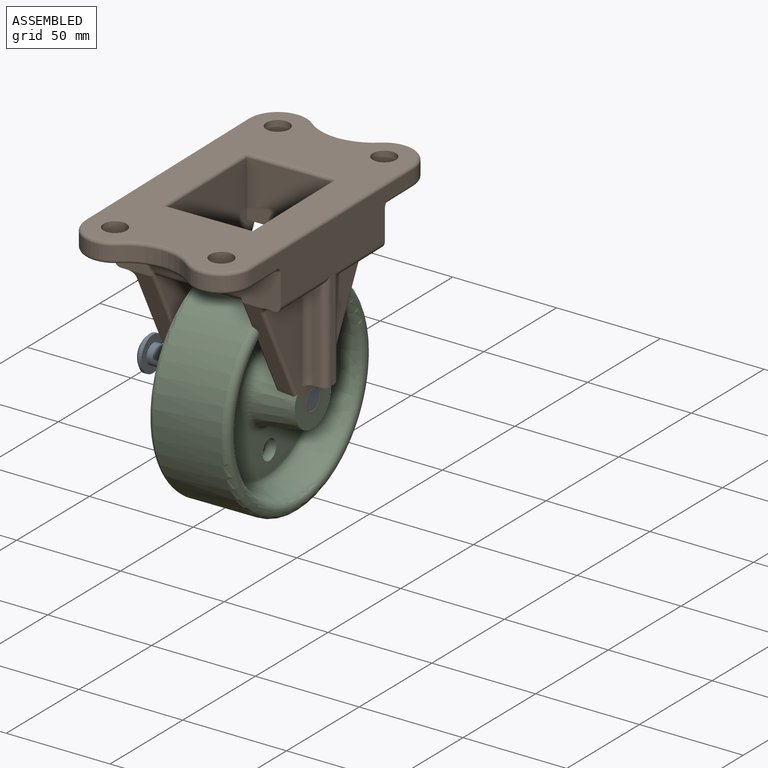
[diagram: assembled view]
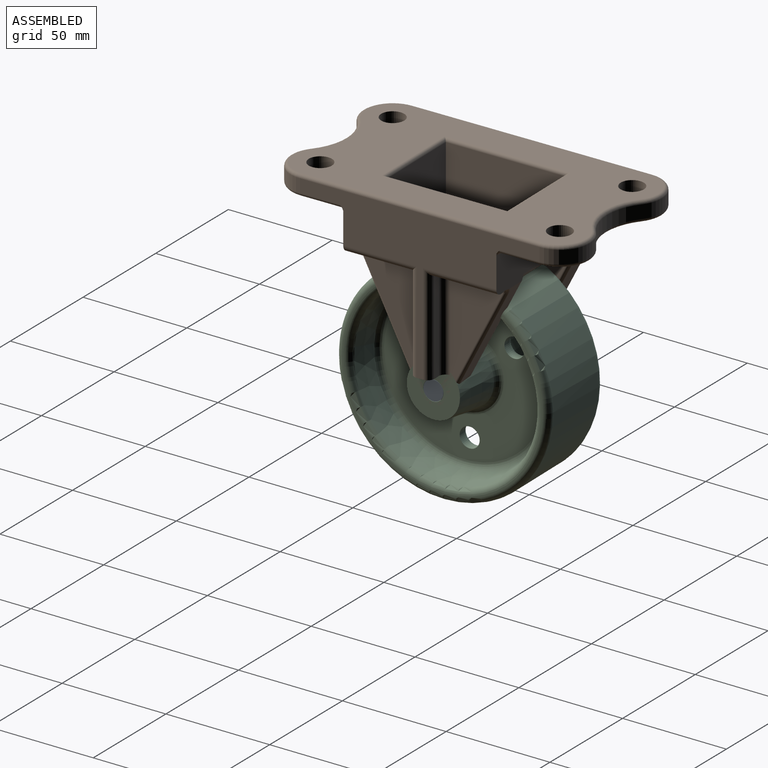
[diagram: assembled view, second angle]
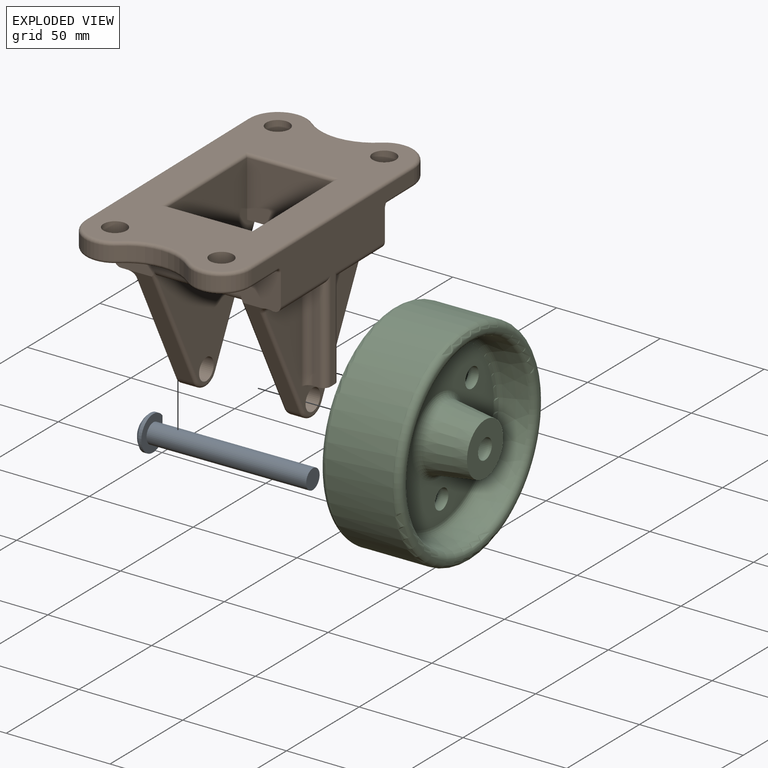
[diagram: exploded view]
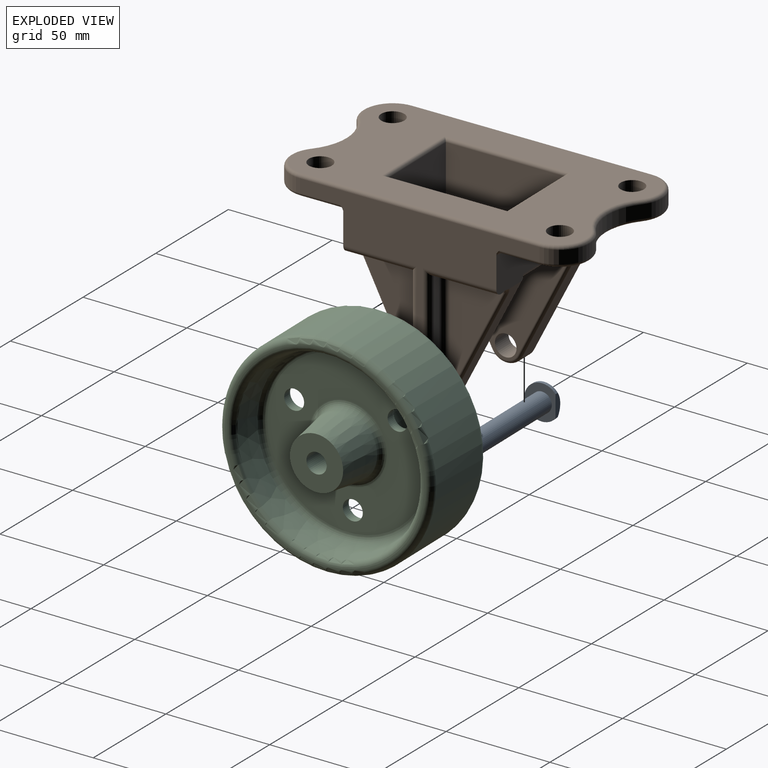
[diagram: exploded view, second angle]
ASSEMBLY  parts=3 mates=2
PART A: 7 faces, bbox 74.1x51.1x16.8 mm
  f0: plane 16.75x12.79mm, normal (0.86,0.51,0), area 136.9mm2, adj f1,f2,f6
  f1: cylinder r=8.38mm len=16.75mm, axis (-0.86,-0.51,0), area 65.5mm2, adj f0,f3,f6
  f2: cylinder r=4.72mm len=70.29mm, axis (-0.86,-0.51,0), area 2261.9mm2, adj f0,f5
  f3: sphere r=11.09mm, area 202.6mm2, adj f1,f4,f6
  f4: plane 7.47x6.42mm, normal (-0.86,-0.51,0), area 43.8mm2, adj f3
  f5: plane 9.45x8.12mm, normal (0.86,0.51,0), area 70.1mm2, adj f2
  f6: plane 10.54x2.83mm, normal (-0.51,0.86,0), area 29mm2, adj f0,f1,f3
PART B: 100 faces, bbox 146.6x86.9x92.5 mm
  f0: plane 139.7x76.2mm, normal (0,0,1), area 6908.5mm2, adj f11,f12,f13,f14,f51,f52,f53,f54
  f1: plane 76.2x31.75mm, normal (0,0,-1), area 1891.8mm2, adj f13,f14,f59,f60,f61,f62,f63,f73
  f2: plane 87.31x69.91mm, normal (0,1,0), area 3783.4mm2, adj f26,f47,f48,f49,f50,f91,f92,f93
  f3: plane 76.2x31.75mm, normal (0,0,-1), area 1891.8mm2, adj f11,f12,f64,f65,f66,f67,f68,f70
  f4: plane 114.89x72.82mm, normal (0,-1,0), area 2157.7mm2, adj f5,f15,f18,f19,f22,f28,f29,f30
  f5: cylinder r=14.29mm len=23.43mm, axis (0,0,-1), area 205.5mm2, adj f4,f6,f52,f60
  f6: cylinder r=25.4mm len=32.51mm, axis (0,0,-1), area 224mm2, adj f5,f7,f51,f61
  f7: cylinder r=14.29mm len=23.43mm, axis (0,0,-1), area 205.5mm2, adj f6,f8,f53,f62
  f8: plane 114.89x72.82mm, normal (0,1,0), area 2157.7mm2, adj f7,f9,f18,f19,f36,f43,f44,f45
  f9: cylinder r=14.29mm len=23.43mm, axis (0,0,-1), area 205.5mm2, adj f8,f10,f57,f67
  f10: cylinder r=25.4mm len=32.51mm, axis (0,0,-1), area 224mm2, adj f9,f15,f58,f68
  f11: cylinder r=5.56mm len=11.11mm, axis (0,0,-1), area 332.5mm2, adj f0,f3
  f12: cylinder r=5.56mm len=11.11mm, axis (0,0,-1), area 332.5mm2, adj f0,f3
  f13: cylinder r=5.56mm len=11.11mm, axis (0,0,-1), area 332.5mm2, adj f0,f1
  f14: cylinder r=5.56mm len=11.11mm, axis (0,0,-1), area 332.5mm2, adj f0,f1
  f15: cylinder r=14.29mm len=23.43mm, axis (0,0,-1), area 205.5mm2, adj f4,f10,f56,f66
  f16: plane 45.24x3.18mm, normal (1,0,0), area 143.6mm2, adj f17,f22,f30,f81
  f17: plane 31.75x3.18mm, normal (0,0,-1), area 100.8mm2, adj f16,f18,f31,f82
  f18: plane 80.76x19.27mm, normal (1,0,0), area 1247.8mm2, adj f4,f8,f17,f24,f31,f34,f39,f43
  f19: plane 80.76x19.27mm, normal (-1,0,0), area 1247.8mm2, adj f4,f8,f20,f23,f28,f33,f37,f46
  f20: plane 31.75x3.18mm, normal (0,0,-1), area 100.8mm2, adj f19,f21,f28,f79
  f21: plane 45.24x3.18mm, normal (-1,0,0), area 143.6mm2, adj f20,f22,f29,f80
  f22: plane 15.88x9.53mm, normal (0,0,-1), area 90.7mm2, adj f4,f16,f21,f27,f29,f30,f80,f81
  f23: plane 58.27x30.13mm, normal (-0.89,0,-0.46), area 515.8mm2, adj f19,f25,f27,f79,f94
  f24: plane 58.27x30.13mm, normal (0.89,0,-0.46), area 515.8mm2, adj f18,f25,f27,f82,f93
  f25: cylinder r=7.94mm len=14.13mm, axis (0,-1,0), area 138.4mm2, adj f23,f24,f27,f95
  f26: cylinder r=5.16mm len=10.32mm, axis (0,-1,0), area 308.8mm2, adj f2,f27
  f27: plane 69.78x58.74mm, normal (0,-1,0), area 1575.2mm2, adj f22,f23,f24,f25,f26,f79,f80,f81
  f28: cylinder r=3.17mm len=34.93mm, axis (-1,0,0), area 166.3mm2, adj f4,f19,f20,f29
  f29: cylinder r=3.17mm len=48.42mm, axis (0,0,1), area 233.6mm2, adj f4,f21,f22,f28
  f30: cylinder r=3.17mm len=48.42mm, axis (0,0,-1), area 233.6mm2, adj f4,f16,f22,f31
  f31: cylinder r=3.17mm len=34.93mm, axis (-1,0,0), area 166.3mm2, adj f4,f17,f18,f30
  f32: plane 45.24x3.18mm, normal (-1,0,0), area 143.6mm2, adj f33,f36,f45,f77
  f33: plane 32.05x3.48mm, normal (0,0,-1), area 99.9mm2, adj f19,f32,f46,f78,f87
  f34: plane 32.05x3.48mm, normal (0,0,-1), area 99.9mm2, adj f18,f35,f43,f75,f83
  f35: plane 45.24x3.18mm, normal (1,0,0), area 143.6mm2, adj f34,f36,f44,f76
  f36: plane 15.88x9.53mm, normal (0,0,-1), area 90.7mm2, adj f8,f32,f35,f42,f44,f45,f76,f77
  f37: plane 57.59x29.45mm, normal (-0.89,0,-0.46), area 413.4mm2, adj f19,f38,f86,f87,f88
  f38: cylinder r=7.94mm len=14.13mm, axis (0,1,0), area 110.7mm2, adj f37,f39,f85,f90
  f39: plane 57.59x29.45mm, normal (0.89,0,-0.46), area 413.4mm2, adj f18,f38,f83,f84,f89
  f40: cylinder r=5.16mm len=10.31mm, axis (0,1,0), area 308.6mm2, adj f41,f42
  f41: plane 87.31x69.91mm, normal (0,-1,0), area 3783.5mm2, adj f40,f47,f48,f49,f50,f88,f89,f90
  f42: plane 66.21x57.15mm, normal (0,1,0), area 1357.7mm2, adj f36,f40,f75,f76,f77,f78,f84,f85
  f43: cylinder r=3.17mm len=34.93mm, axis (-1,0,0), area 166.3mm2, adj f8,f18,f34,f44
  f44: cylinder r=3.17mm len=48.41mm, axis (0,0,-1), area 233.5mm2, adj f8,f35,f36,f43
  f45: cylinder r=3.17mm len=48.41mm, axis (0,0,1), area 233.5mm2, adj f8,f32,f36,f46
  f46: cylinder r=3.17mm len=34.93mm, axis (-1,0,0), area 166.3mm2, adj f8,f19,f33,f45
  f47: plane 41.28x26.99mm, normal (1,0,0), area 1113.9mm2, adj f2,f41,f48,f96
  f48: plane 41.28x4.76mm, normal (0,0,-1), area 196.6mm2, adj f2,f41,f47,f92
  f49: plane 41.28x26.99mm, normal (-1,0,0), area 1113.9mm2, adj f2,f41,f50,f99
  f50: plane 41.28x4.76mm, normal (0,0,-1), area 196.6mm2, adj f2,f41,f49,f91
  f51: torus R=26.99mm, axis (0,0,1), area 90mm2, adj f0,f6,f52,f53
  f52: torus R=12.7mm, axis (0,0,1), area 77.4mm2, adj f0,f5,f51,f54
  f53: torus R=12.7mm, axis (0,0,1), area 77.4mm2, adj f0,f7,f51,f55
  f54: cylinder r=1.59mm len=114.3mm, axis (-1,0,0), area 285mm2, adj f0,f4,f52,f56
  f55: cylinder r=1.59mm len=114.3mm, axis (1,0,0), area 285mm2, adj f0,f8,f53,f57
  f56: torus R=12.7mm, axis (0,0,1), area 77.4mm2, adj f0,f15,f54,f58
  f57: torus R=12.7mm, axis (0,0,1), area 77.4mm2, adj f0,f9,f55,f58
  f58: torus R=26.99mm, axis (0,0,1), area 90mm2, adj f0,f10,f56,f57
  f59: cylinder r=1.59mm len=19.05mm, axis (1,0,0), area 47.5mm2, adj f1,f4,f60,f72
  f60: torus R=12.7mm, axis (0,0,1), area 77.4mm2, adj f1,f5,f59,f61
  f61: torus R=26.99mm, axis (0,0,1), area 90mm2, adj f1,f6,f60,f62
  f62: torus R=12.7mm, axis (0,0,1), area 77.4mm2, adj f1,f7,f61,f63
  f63: cylinder r=1.59mm len=19.05mm, axis (-1,0,0), area 47.5mm2, adj f1,f8,f62,f74
  f64: cylinder r=1.59mm len=19.05mm, axis (1,0,0), area 47.5mm2, adj f3,f4,f66,f69
  f65: cylinder r=1.59mm len=19.05mm, axis (-1,0,0), area 47.5mm2, adj f3,f8,f67,f71
  f66: torus R=12.7mm, axis (0,0,1), area 77.4mm2, adj f3,f15,f64,f68
  f67: torus R=12.7mm, axis (0,0,1), area 77.4mm2, adj f3,f9,f65,f68
  f68: torus R=26.99mm, axis (0,0,1), area 90mm2, adj f3,f10,f66,f67
  f69: torus R=3.17mm, axis (-1,0,0), area 5.3mm2, adj f4,f19,f64,f70
  f70: cylinder r=1.59mm len=76.2mm, axis (0,-1,0), area 190mm2, adj f3,f19,f69,f71
  f71: torus R=3.17mm, axis (-1,0,0), area 5.3mm2, adj f8,f19,f65,f70
  f72: torus R=3.17mm, axis (-1,0,0), area 5.3mm2, adj f4,f18,f59,f73
  f73: cylinder r=1.59mm len=76.2mm, axis (0,1,0), area 190mm2, adj f1,f18,f72,f74
  f74: torus R=3.17mm, axis (-1,0,0), area 5.3mm2, adj f8,f18,f63,f73
  f75: cylinder r=3.17mm len=30.78mm, axis (-1,0,0), area 139.5mm2, adj f34,f42,f76,f83
  f76: cylinder r=3.17mm len=45.24mm, axis (0,0,-1), area 217.7mm2, adj f35,f36,f42,f75
  f77: cylinder r=3.17mm len=45.24mm, axis (0,0,1), area 217.7mm2, adj f32,f36,f42,f78
  f78: cylinder r=3.17mm len=30.78mm, axis (-1,0,0), area 139.5mm2, adj f33,f42,f77,f87
  f79: cylinder r=3.17mm len=31.75mm, axis (1,0,0), area 146.4mm2, adj f20,f23,f27,f80
  f80: cylinder r=3.17mm len=45.24mm, axis (0,0,-1), area 217.7mm2, adj f21,f22,f27,f79
  f81: cylinder r=3.17mm len=45.24mm, axis (0,0,1), area 217.7mm2, adj f16,f22,f27,f82
  f82: cylinder r=3.17mm len=31.75mm, axis (1,0,0), area 146.4mm2, adj f17,f24,f27,f81
  f83: bspline ~7.5x4.76mm, area 15.6mm2, adj f18,f34,f39,f75,f84
  f84: cylinder r=1.59mm len=54.41mm, axis (0.46,0,0.89), area 150.4mm2, adj f39,f42,f83,f85
  f85: torus R=6.35mm, axis (0,-1,0), area 40.3mm2, adj f38,f42,f84,f86
  f86: cylinder r=1.59mm len=54.41mm, axis (0.46,0,-0.89), area 150.4mm2, adj f37,f42,f85,f87
  f87: bspline ~7.5x4.76mm, area 15.6mm2, adj f19,f33,f37,f78,f86
  f88: cylinder r=1.59mm len=60.83mm, axis (-0.46,0,0.89), area 163.9mm2, adj f19,f37,f41,f90,f92
  f89: cylinder r=1.59mm len=60.83mm, axis (-0.46,0,-0.89), area 163.9mm2, adj f18,f39,f41,f90,f91
  f90: torus R=6.35mm, axis (0,-1,0), area 40.3mm2, adj f38,f41,f88,f89
  f91: cylinder r=3.17mm len=41.29mm, axis (0,-1,0), area 205.9mm2, adj f2,f18,f41,f50,f89,f93
  f92: cylinder r=3.17mm len=41.29mm, axis (0,-1,0), area 205.9mm2, adj f2,f19,f41,f48,f88,f94
  f93: cylinder r=1.59mm len=60.83mm, axis (0.46,0,0.89), area 163.9mm2, adj f2,f18,f24,f91,f95
  f94: cylinder r=1.59mm len=60.83mm, axis (0.46,0,-0.89), area 163.9mm2, adj f2,f19,f23,f92,f95
  f95: torus R=6.35mm, axis (0,1,0), area 40.3mm2, adj f2,f25,f93,f94
  f96: cylinder r=1.59mm len=44.45mm, axis (0,-1,0), area 106.9mm2, adj f0,f47,f97,f98
  f97: cylinder r=1.59mm len=60.33mm, axis (-1,0,0), area 146.5mm2, adj f0,f41,f96,f99
  f98: cylinder r=1.59mm len=60.33mm, axis (-1,0,0), area 146.5mm2, adj f0,f2,f96,f99
  f99: cylinder r=1.59mm len=44.45mm, axis (0,1,0), area 106.9mm2, adj f0,f49,f97,f98
PART C: 26 faces, bbox 110x50.8x110 mm
  f0: torus R=18.63mm, axis (0,-1,0), area 476.6mm2, adj f1,f15
  f1: cone r=12.7mm half-angle=8.1deg, axis (0,1,0), area 1744.1mm2, adj f0,f2
  f2: plane 25.4x25.4mm, normal (0,-1,0), area 433.5mm2, adj f1,f3
  f3: cylinder r=4.83mm len=50.8mm, axis (0,-1,0), area 1540.4mm2, adj f2,f4
  f4: plane 25.4x25.4mm, normal (0,1,0), area 433.5mm2, adj f3,f5
  f5: cone r=15.49mm half-angle=8.1deg, axis (0,-1,0), area 1744.1mm2, adj f4,f6
  f6: torus R=18.63mm, axis (0,-1,0), area 476.6mm2, adj f5,f7
  f7: plane 77.34x77.34mm, normal (0,1,0), area 3394.4mm2, adj f6,f8,f16,f17,f18
  f8: torus R=38.67mm, axis (0,-1,0), area 1110.5mm2, adj f7,f9
  f9: cone r=44.45mm half-angle=11.3deg, axis (0,1,0), area 2958mm2, adj f8,f24
  f10: plane 95.25x95.25mm, normal (0,1,0), area 170.2mm2, adj f22,f24
  f11: cylinder r=50.8mm len=101.6mm, axis (0,-1,0), area 10134.1mm2, adj f22,f25
  f12: plane 95.25x95.25mm, normal (0,-1,0), area 170.2mm2, adj f23,f25
  f13: cone r=41.79mm half-angle=11.3deg, axis (0,-1,0), area 2958mm2, adj f14,f23
  f14: torus R=38.67mm, axis (0,-1,0), area 1110.5mm2, adj f13,f15
  f15: plane 77.34x77.34mm, normal (0,-1,0), area 3014.3mm2, adj f0,f14,f19,f20,f21
  f16: cylinder r=4.76mm len=9.53mm, axis (0,1,0), area 95mm2, adj f7,f21
  f17: cylinder r=4.76mm len=9.53mm, axis (0,1,0), area 95mm2, adj f7,f20
  f18: cylinder r=4.76mm len=9.53mm, axis (0,1,0), area 95mm2, adj f7,f19
  f19: torus R=7.94mm, axis (0,-1,0), area 185.4mm2, adj f15,f18
  f20: torus R=7.94mm, axis (0,-1,0), area 185.4mm2, adj f15,f17
  f21: torus R=7.94mm, axis (0,-1,0), area 185.4mm2, adj f15,f16
  f22: torus R=47.62mm, axis (0,1,0), area 1555.7mm2, adj f10,f11
  f23: torus R=47.05mm, axis (0,-1,0), area 1238.2mm2, adj f12,f13
  f24: torus R=47.05mm, axis (0,1,0), area 1238.2mm2, adj f9,f10
  f25: torus R=47.62mm, axis (0,-1,0), area 1555.7mm2, adj f11,f12
PLACE A rot(axis=(0,0,-1),30deg) t=(-54.76,120.36,48.77)mm
PLACE B rot(axis=(0,0,-1),89.2deg) t=(-43.88,224.36,121.8)mm
PLACE C rot(axis=(0.69,0.7,-0.18),158.8deg) t=(-29.6,160.79,16.46)mm
MATE revolute B.f25 <-> A.f1  axis (1,0.01,0) through (-13.09,179.68,48.77)mm
MATE revolute C.f0 <-> A.f1  axis (1,0.01,0) through (-13.09,179.68,48.77)mm
